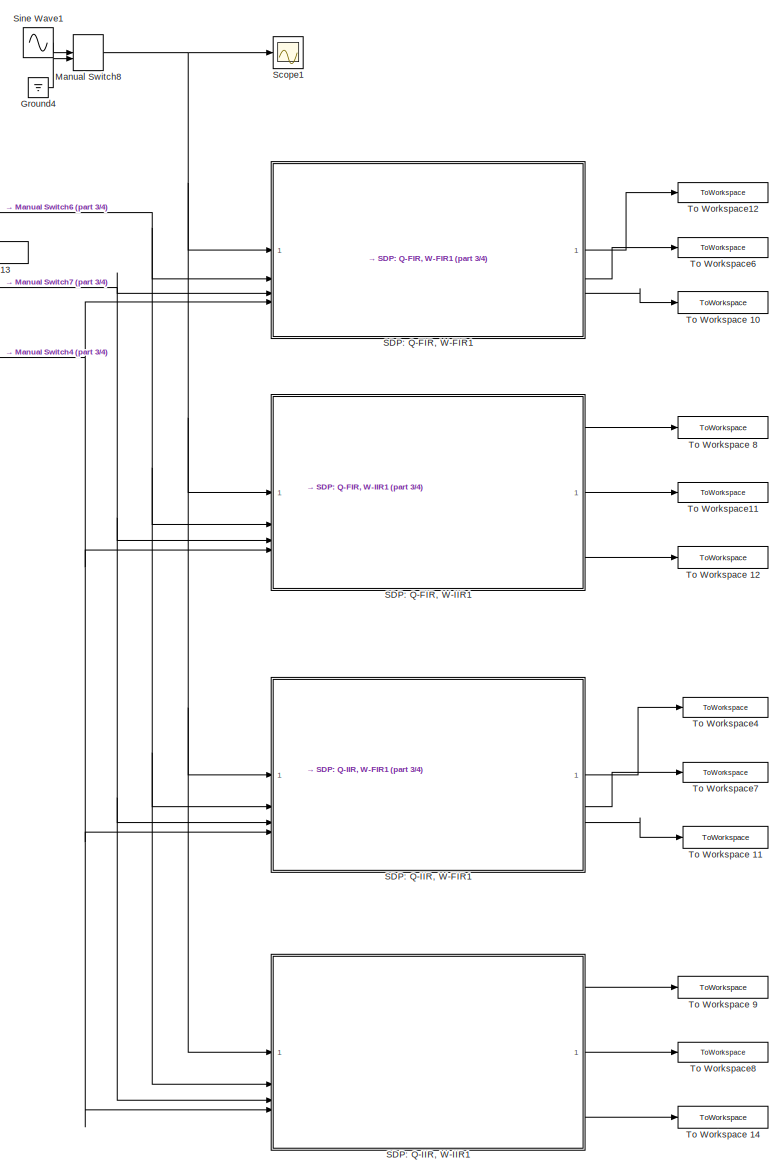
[diagram: root canvas - part 1/4, right side, full height]
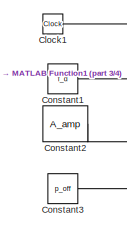
[diagram: root canvas - part 2/4, top center region]
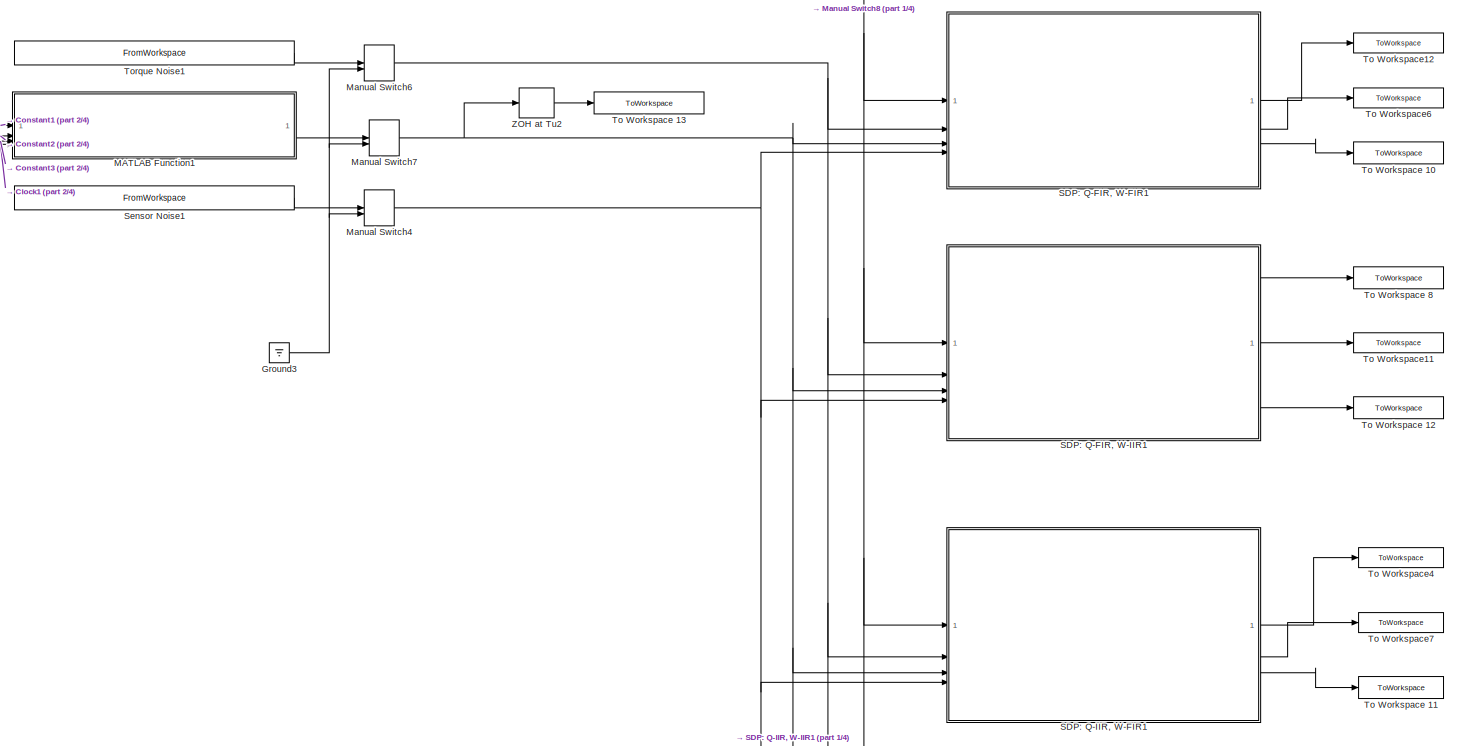
[diagram: root canvas - part 3/4, middle right region]
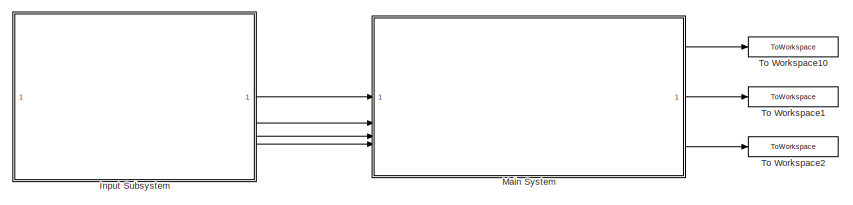
[diagram: root canvas - part 4/4, top left region]
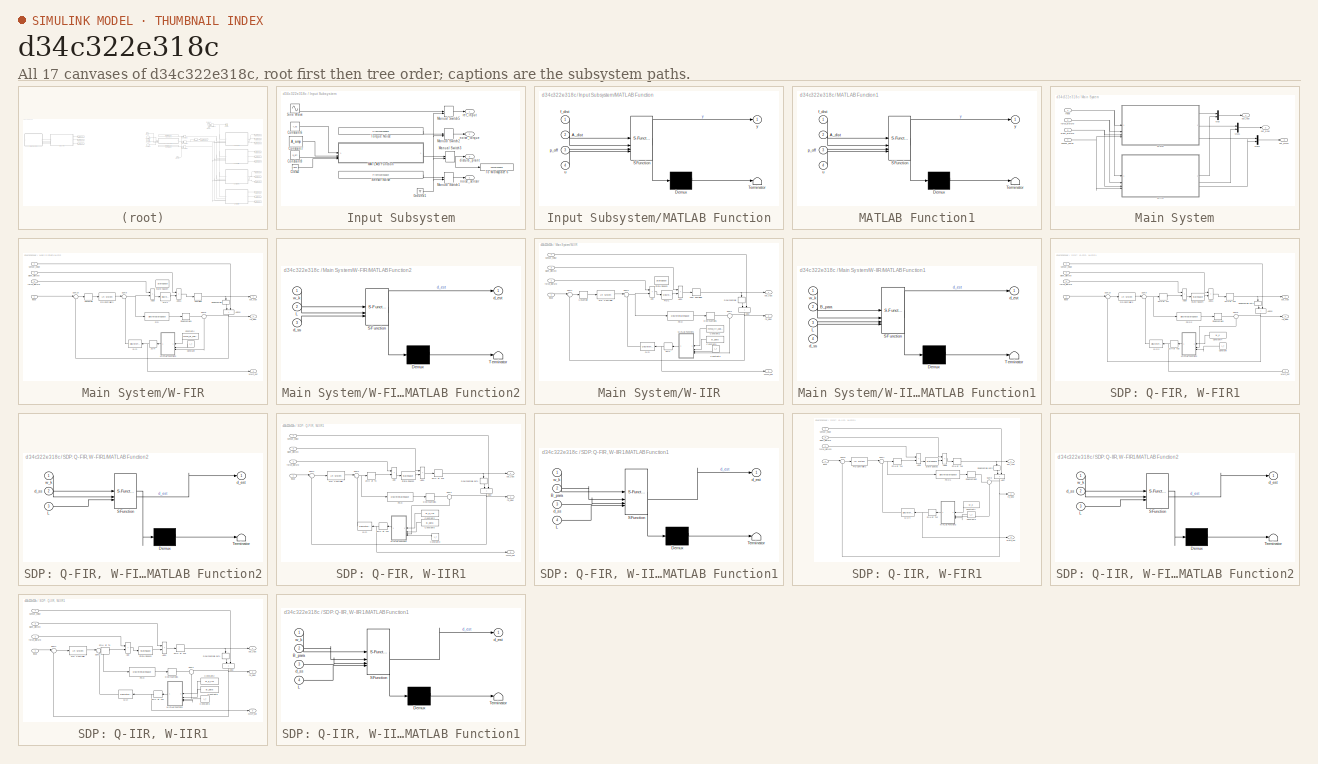
[diagram: thumbnail index - all 17 canvases of the model, root first then tree order]
MODEL slx_d34c322e318c
KIND model
CONFIG AbsTol = auto
CONFIG EnableMultiTasking = off
CONFIG FixedStep = auto
CONFIG MaxStep = auto
CONFIG MinStep = auto
CONFIG RelTol = 1e-3
CONFIG SampleTimeConstraint = Unconstrained
CONFIG SolverName = VariableStepAuto
CONFIG StartTime = 0.0
CONFIG StopTime = Tsim
BLOCK [Clock] Clock1
  Commented = on
BLOCK [Constant] Constant1
  Commented = on
  Value = f_d
BLOCK [Constant] Constant2
  Commented = on
  Value = A_amp
BLOCK [Constant] Constant3
  Commented = on
  Value = p_off
BLOCK [Ground] Ground3
  Commented = on
BLOCK [Ground] Ground4
  Commented = on
BLOCK [SubSystem] Input Subsystem
BLOCK [Clock] Input Subsystem/Clock2
BLOCK [Constant] Input Subsystem/Constant6
  Value = f_hz
BLOCK [Constant] Input Subsystem/Constant7
  Value = A_amp
BLOCK [Constant] Input Subsystem/Constant8
  Value = p_off
BLOCK [Ground] Input Subsystem/Ground1
BLOCK [SubSystem] Input Subsystem/MATLAB Function
  ErrorFcn = Stateflow.Translate.translate
  LibrarySourceBlock = simulink/User-Defined\nFunctions/MATLAB Function
  PermitHierarchicalResolution = ExplicitOnly
  SFBlockType = MATLAB Function
  TreatAsAtomicUnit = on
BLOCK [Demux] Input Subsystem/MATLAB Function/ Demux 
  Outputs = 1
BLOCK [S-Function] Input Subsystem/MATLAB Function/ SFunction 
  EnableBusSupport = on
  FunctionName = sf_sfun
  PortCounts = [4 2]
  SFcnIsStateOwnerBlock = off
  SFunctionDeploymentMode = off
  Tag = Stateflow S-Function 2
BLOCK [Terminator] Input Subsystem/MATLAB Function/ Terminator 
BLOCK [Inport] Input Subsystem/MATLAB Function/A_dist
  Port = 2
BLOCK [Inport] Input Subsystem/MATLAB Function/f_dist
BLOCK [Inport] Input Subsystem/MATLAB Function/p_off
  Port = 3
BLOCK [Inport] Input Subsystem/MATLAB Function/u
  Port = 4
BLOCK [Outport] Input Subsystem/MATLAB Function/y
BLOCK [ManualSwitch] Input Subsystem/Manual Switch1
BLOCK [ManualSwitch] Input Subsystem/Manual Switch2
BLOCK [ManualSwitch] Input Subsystem/Manual Switch3
BLOCK [ManualSwitch] Input Subsystem/Manual Switch5
  CurrentSetting = 0
BLOCK [FromWorkspace] Input Subsystem/Sensor Noise
  Interpolate = off
  OutputAfterFinalValue = Setting to zero
  SampleTime = SensorNoise.Ts
  VariableName = [SensorNoise.Time,SensorNoise.Data]
  ZeroCross = off
BLOCK [Sin] Input Subsystem/Sine Wave
  SampleTime = T_fs
BLOCK [ToWorkspace] Input Subsystem/To Workspace 6
  MaxDataPoints = Inf
  SampleTime = T_fs
  SaveFormat = Structure With Time
  VariableName = dist
BLOCK [FromWorkspace] Input Subsystem/Torque Noise
  Interpolate = off
  OutputAfterFinalValue = Setting to zero
  SampleTime = ForceDist.Ts
  VariableName = [ForceDist.Time,ForceDist.Data]
  ZeroCross = off
BLOCK [Outport] Input Subsystem/disturb_plant
  Port = 3
BLOCK [Outport] Input Subsystem/noise_sensor
  Port = 4
BLOCK [Outport] Input Subsystem/noise_torque
  Port = 2
BLOCK [Outport] Input Subsystem/ref_input
BLOCK [SubSystem] MATLAB Function1
  Commented = on
  ErrorFcn = Stateflow.Translate.translate
  LibrarySourceBlock = simulink/User-Defined\nFunctions/MATLAB Function
  PermitHierarchicalResolution = ExplicitOnly
  SFBlockType = MATLAB Function
  TreatAsAtomicUnit = on
BLOCK [Demux] MATLAB Function1/ Demux 
  Outputs = 1
BLOCK [S-Function] MATLAB Function1/ SFunction 
  EnableBusSupport = on
  FunctionName = sf_sfun
  PortCounts = [4 2]
  SFcnIsStateOwnerBlock = off
  SFunctionDeploymentMode = off
  Tag = Stateflow S-Function 6
BLOCK [Terminator] MATLAB Function1/ Terminator 
BLOCK [Inport] MATLAB Function1/A_dist
  Port = 2
BLOCK [Inport] MATLAB Function1/f_dist
BLOCK [Inport] MATLAB Function1/p_off
  Port = 3
BLOCK [Inport] MATLAB Function1/u
  Port = 4
BLOCK [Outport] MATLAB Function1/y
BLOCK [SubSystem] Main System
BLOCK [Mux] Main System/Mux
  DisplayOption = bar
  Inputs = 2
BLOCK [Mux] Main System/Mux1
  DisplayOption = bar
  Inputs = 2
BLOCK [Mux] Main System/Mux2
  DisplayOption = bar
  Inputs = 2
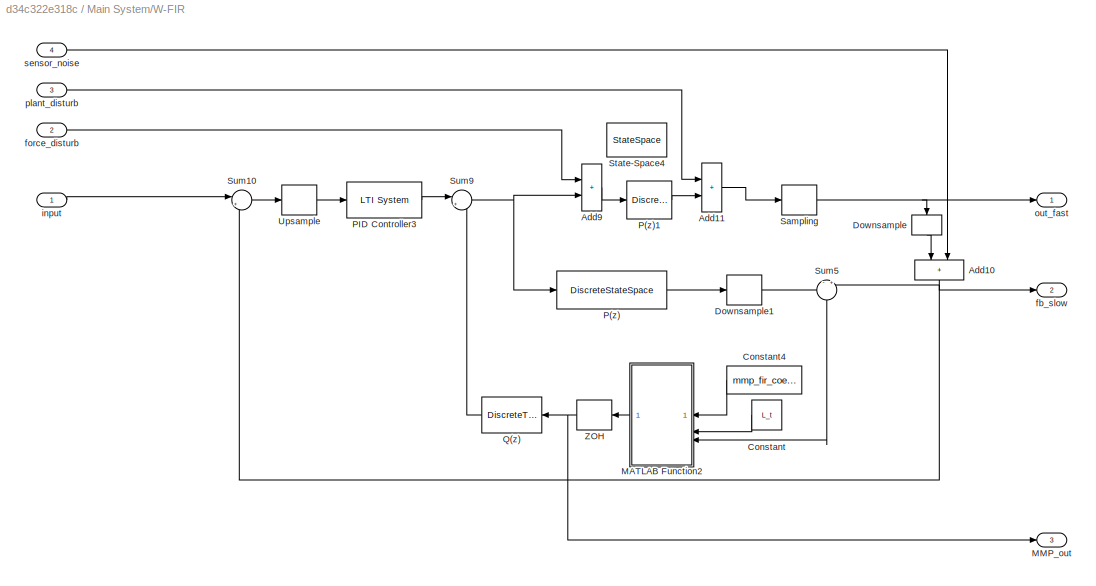
BLOCK [SubSystem] Main System/W-FIR
BLOCK [Sum] Main System/W-FIR/Add10
  IconShape = rectangular
  NameLocation = left
BLOCK [Sum] Main System/W-FIR/Add11
  IconShape = rectangular
BLOCK [Sum] Main System/W-FIR/Add9
  IconShape = rectangular
BLOCK [Constant] Main System/W-FIR/Constant
  NameLocation = top
  Value = L_t
BLOCK [Constant] Main System/W-FIR/Constant4
  NameLocation = top
  Value = mmp_fir_coeff
BLOCK [ZeroOrderHold] Main System/W-FIR/Downsample
  NameLocation = left
  SampleTime = T_ss
BLOCK [ZeroOrderHold] Main System/W-FIR/Downsample1
  SampleTime = T_ss
BLOCK [SubSystem] Main System/W-FIR/MATLAB Function2
  ErrorFcn = Stateflow.Translate.translate
  NameLocation = top
  PermitHierarchicalResolution = ExplicitOnly
  SFBlockType = MATLAB Function
  SystemSampleTime = T_cs
  TreatAsAtomicUnit = on
BLOCK [Demux] Main System/W-FIR/MATLAB Function2/ Demux 
  Outputs = 1
BLOCK [S-Function] Main System/W-FIR/MATLAB Function2/ SFunction 
  EnableBusSupport = on
  FunctionName = sf_sfun
  PortCounts = [3 2]
  SFcnIsStateOwnerBlock = off
  SFunctionDeploymentMode = off
  Tag = Stateflow S-Function 3
BLOCK [Terminator] Main System/W-FIR/MATLAB Function2/ Terminator 
BLOCK [Inport] Main System/W-FIR/MATLAB Function2/L
  Port = 2
BLOCK [Outport] Main System/W-FIR/MATLAB Function2/d_est
BLOCK [Inport] Main System/W-FIR/MATLAB Function2/d_ss
  Port = 3
BLOCK [Inport] Main System/W-FIR/MATLAB Function2/w_k
BLOCK [Outport] Main System/W-FIR/MMP_out
  NameLocation = top
  Port = 3
BLOCK [DiscreteStateSpace] Main System/W-FIR/P(z)
  A = Pz_sys.A
  B = Pz_sys.B
  C = Pz_sys.C
  D = Pz_sys.D
  SampleTime = T_fs
BLOCK [DiscreteStateSpace] Main System/W-FIR/P(z)1
  A = Pz_sys.A
  B = Pz_sys.B
  C = Pz_sys.C
  D = Pz_sys.D
  SampleTime = T_fs
BLOCK [Reference] Main System/W-FIR/PID Controller3  REF=cstblocks/LTI System
  SourceBlock = cstblocks/LTI System
  SourceType = LTI Block
BLOCK [DiscreteTransferFcn] Main System/W-FIR/Q(z)
  Denominator = cell2mat(Qcvx_sim.den)
  InputPortMap = u0
  NameLocation = top
  Numerator = cell2mat(Qcvx_sim.num)
  SampleTime = T_fs
BLOCK [ZeroOrderHold] Main System/W-FIR/Sampling
  SampleTime = T_fs
BLOCK [StateSpace] Main System/W-FIR/State-Space4
  A = Ps_sys.A
  B = Ps_sys.B
  C = Ps_sys.C
  Commented = on
  D = Ps_sys.D
  InitialCondition = 0
BLOCK [Sum] Main System/W-FIR/Sum10
  Inputs = |+-
BLOCK [Sum] Main System/W-FIR/Sum5
  Inputs = -|+
  NameLocation = left
BLOCK [Sum] Main System/W-FIR/Sum9
  Inputs = |+-
BLOCK [ZeroOrderHold] Main System/W-FIR/Upsample
  SampleTime = T_fs
BLOCK [ZeroOrderHold] Main System/W-FIR/ZOH
  NameLocation = top
  SampleTime = T_fs
BLOCK [Outport] Main System/W-FIR/fb_slow
  Port = 2
BLOCK [Inport] Main System/W-FIR/force_disturb
  Port = 2
BLOCK [Inport] Main System/W-FIR/input
BLOCK [Outport] Main System/W-FIR/out_fast
BLOCK [Inport] Main System/W-FIR/plant_disturb
  Port = 3
BLOCK [Inport] Main System/W-FIR/sensor_noise
  Port = 4
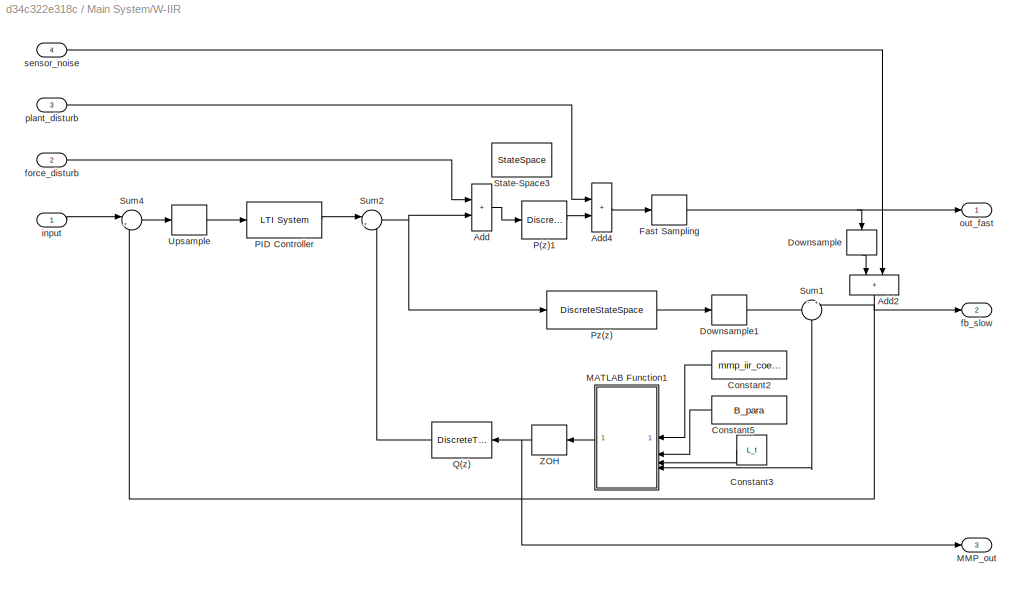
BLOCK [SubSystem] Main System/W-IIR
BLOCK [Sum] Main System/W-IIR/Add
  IconShape = rectangular
BLOCK [Sum] Main System/W-IIR/Add2
  IconShape = rectangular
  NameLocation = left
BLOCK [Sum] Main System/W-IIR/Add4
  IconShape = rectangular
BLOCK [Constant] Main System/W-IIR/Constant2
  NameLocation = top
  Value = mmp_iir_coeff
BLOCK [Constant] Main System/W-IIR/Constant3
  NameLocation = top
  Value = L_t
BLOCK [Constant] Main System/W-IIR/Constant5
  NameLocation = top
  Value = B_para
BLOCK [ZeroOrderHold] Main System/W-IIR/Downsample
  NameLocation = left
  SampleTime = T_ss
BLOCK [ZeroOrderHold] Main System/W-IIR/Downsample1
  SampleTime = T_ss
BLOCK [ZeroOrderHold] Main System/W-IIR/Fast Sampling
  SampleTime = T_fs
BLOCK [SubSystem] Main System/W-IIR/MATLAB Function1
  ErrorFcn = Stateflow.Translate.translate
  NameLocation = top
  PermitHierarchicalResolution = ExplicitOnly
  SFBlockType = MATLAB Function
  SystemSampleTime = T_cs
  TreatAsAtomicUnit = on
BLOCK [Demux] Main System/W-IIR/MATLAB Function1/ Demux 
  Outputs = 1
BLOCK [S-Function] Main System/W-IIR/MATLAB Function1/ SFunction 
  EnableBusSupport = on
  FunctionName = sf_sfun
  PortCounts = [4 2]
  SFcnIsStateOwnerBlock = off
  SFunctionDeploymentMode = off
  Tag = Stateflow S-Function 4
BLOCK [Terminator] Main System/W-IIR/MATLAB Function1/ Terminator 
BLOCK [Inport] Main System/W-IIR/MATLAB Function1/B_para
  Port = 2
BLOCK [Inport] Main System/W-IIR/MATLAB Function1/L
  Port = 3
BLOCK [Outport] Main System/W-IIR/MATLAB Function1/d_est
BLOCK [Inport] Main System/W-IIR/MATLAB Function1/d_ss
  Port = 4
BLOCK [Inport] Main System/W-IIR/MATLAB Function1/w_k
BLOCK [Outport] Main System/W-IIR/MMP_out
  Port = 3
BLOCK [DiscreteStateSpace] Main System/W-IIR/P(z)1
  A = Pz_sys.A
  B = Pz_sys.B
  C = Pz_sys.C
  D = Pz_sys.D
  SampleTime = T_fs
BLOCK [Reference] Main System/W-IIR/PID Controller  REF=cstblocks/LTI System
  SourceBlock = cstblocks/LTI System
  SourceType = LTI Block
BLOCK [DiscreteStateSpace] Main System/W-IIR/Pz(z)
  A = Pz_sys.A
  B = Pz_sys.B
  C = Pz_sys.C
  D = Pz_sys.D
  SampleTime = T_fs
BLOCK [DiscreteTransferFcn] Main System/W-IIR/Q(z)
  Denominator = cell2mat(Qcvx_sim.den)
  InputPortMap = u0
  NameLocation = top
  Numerator = cell2mat(Qcvx_sim.num)
  SampleTime = T_fs
BLOCK [StateSpace] Main System/W-IIR/State-Space3
  A = Ps_sys.A
  B = Ps_sys.B
  C = Ps_sys.C
  Commented = on
  D = Ps_sys.D
  InitialCondition = 0
BLOCK [Sum] Main System/W-IIR/Sum1
  Inputs = -|+
  NameLocation = left
BLOCK [Sum] Main System/W-IIR/Sum2
  Inputs = |+-
BLOCK [Sum] Main System/W-IIR/Sum4
  Inputs = |+-
BLOCK [ZeroOrderHold] Main System/W-IIR/Upsample
  SampleTime = T_fs
BLOCK [ZeroOrderHold] Main System/W-IIR/ZOH
  NameLocation = top
  SampleTime = T_fs
BLOCK [Outport] Main System/W-IIR/fb_slow
  Port = 2
BLOCK [Inport] Main System/W-IIR/force_disturb
  Port = 2
BLOCK [Inport] Main System/W-IIR/input
BLOCK [Outport] Main System/W-IIR/out_fast
BLOCK [Inport] Main System/W-IIR/plant_disturb
  Port = 3
BLOCK [Inport] Main System/W-IIR/sensor_noise
  Port = 4
BLOCK [Inport] Main System/force_disturb
  Port = 2
BLOCK [Inport] Main System/input
BLOCK [Outport] Main System/out_fast
BLOCK [Outport] Main System/out_mmp
  Port = 3
BLOCK [Outport] Main System/out_slow
  Port = 2
BLOCK [Inport] Main System/plant_disturb
  Port = 3
BLOCK [Inport] Main System/sensor_noise
  Port = 4
BLOCK [ManualSwitch] Manual Switch4
  Commented = on
BLOCK [ManualSwitch] Manual Switch6
  Commented = on
BLOCK [ManualSwitch] Manual Switch7
  Commented = on
BLOCK [ManualSwitch] Manual Switch8
  Commented = on
  CurrentSetting = 0
BLOCK [SubSystem] SDP: Q-FIR, W-FIR1
  Commented = on
BLOCK [Sum] SDP: Q-FIR, W-FIR1/Add10
  IconShape = rectangular
  NameLocation = left
BLOCK [Sum] SDP: Q-FIR, W-FIR1/Add11
  IconShape = rectangular
BLOCK [Sum] SDP: Q-FIR, W-FIR1/Add9
  IconShape = rectangular
BLOCK [Constant] SDP: Q-FIR, W-FIR1/Constant
  NameLocation = top
  Value = L_t
BLOCK [Constant] SDP: Q-FIR, W-FIR1/Constant4
  NameLocation = top
  Value = w_k
BLOCK [ZeroOrderHold] SDP: Q-FIR, W-FIR1/Downsample out1
  NameLocation = left
  SampleTime = Ts
BLOCK [ZeroOrderHold] SDP: Q-FIR, W-FIR1/Downsample1
  SampleTime = Ts
BLOCK [SubSystem] SDP: Q-FIR, W-FIR1/MATLAB Function2
  ErrorFcn = Stateflow.Translate.translate
  NameLocation = top
  PermitHierarchicalResolution = ExplicitOnly
  SFBlockType = MATLAB Function
  SystemSampleTime = T_cs
  TreatAsAtomicUnit = on
BLOCK [Demux] SDP: Q-FIR, W-FIR1/MATLAB Function2/ Demux 
  Outputs = 1
BLOCK [S-Function] SDP: Q-FIR, W-FIR1/MATLAB Function2/ SFunction 
  EnableBusSupport = on
  FunctionName = sf_sfun
  PortCounts = [3 2]
  SFcnIsStateOwnerBlock = off
  SFunctionDeploymentMode = off
  Tag = Stateflow S-Function 7
BLOCK [Terminator] SDP: Q-FIR, W-FIR1/MATLAB Function2/ Terminator 
BLOCK [Inport] SDP: Q-FIR, W-FIR1/MATLAB Function2/L
  Port = 3
BLOCK [Outport] SDP: Q-FIR, W-FIR1/MATLAB Function2/d_est
BLOCK [Inport] SDP: Q-FIR, W-FIR1/MATLAB Function2/d_ss
  Port = 2
BLOCK [Inport] SDP: Q-FIR, W-FIR1/MATLAB Function2/w_k
BLOCK [Outport] SDP: Q-FIR, W-FIR1/MMP_out
  NameLocation = top
  Port = 3
BLOCK [Reference] SDP: Q-FIR, W-FIR1/PID Controller3  REF=cstblocks/LTI System
  SourceBlock = cstblocks/LTI System
  SourceType = LTI Block
BLOCK [DiscreteStateSpace] SDP: Q-FIR, W-FIR1/Pz(z)2
  A = Pz_sys.A
  B = Pz_sys.B
  C = Pz_sys.C
  D = Pz_sys.D
  SampleTime = Tu
BLOCK [DiscreteTransferFcn] SDP: Q-FIR, W-FIR1/Q(z)2
  Denominator = cell2mat(Qcvx_FIR.den)
  InputPortMap = u0
  NameLocation = top
  Numerator = cell2mat(Qcvx_FIR.num)
  SampleTime = Tu
BLOCK [StateSpace] SDP: Q-FIR, W-FIR1/State-Space4
  A = Ps_sys.A
  B = Ps_sys.B
  C = Ps_sys.C
  D = Ps_sys.D
  InitialCondition = 0
BLOCK [Sum] SDP: Q-FIR, W-FIR1/Sum10
  Inputs = |+-
BLOCK [Sum] SDP: Q-FIR, W-FIR1/Sum5
  Inputs = -|+
  NameLocation = left
BLOCK [Sum] SDP: Q-FIR, W-FIR1/Sum9
  Inputs = |+-
BLOCK [ZeroOrderHold] SDP: Q-FIR, W-FIR1/ZOH at Tu7
  SampleTime = Tu
BLOCK [ZeroOrderHold] SDP: Q-FIR, W-FIR1/ZOH at Tu8
  NameLocation = top
  SampleTime = Tu
BLOCK [ZeroOrderHold] SDP: Q-FIR, W-FIR1/ZOH at Tu9
  SampleTime = Tu
BLOCK [Outport] SDP: Q-FIR, W-FIR1/fb_slow
  Port = 2
BLOCK [Inport] SDP: Q-FIR, W-FIR1/force_disturb
  Port = 2
BLOCK [Inport] SDP: Q-FIR, W-FIR1/input
BLOCK [Outport] SDP: Q-FIR, W-FIR1/out_fast
BLOCK [Inport] SDP: Q-FIR, W-FIR1/plant_disturb
  Port = 3
BLOCK [Inport] SDP: Q-FIR, W-FIR1/sensor_noise
  Port = 4
BLOCK [SubSystem] SDP: Q-FIR, W-IIR1
  Commented = on
BLOCK [Sum] SDP: Q-FIR, W-IIR1/Add
  IconShape = rectangular
BLOCK [Sum] SDP: Q-FIR, W-IIR1/Add2
  IconShape = rectangular
  NameLocation = left
BLOCK [Sum] SDP: Q-FIR, W-IIR1/Add4
  IconShape = rectangular
BLOCK [Constant] SDP: Q-FIR, W-IIR1/Constant2
  NameLocation = top
  Value = w_k_IIR
BLOCK [Constant] SDP: Q-FIR, W-IIR1/Constant3
  NameLocation = top
  Value = L_t
BLOCK [Constant] SDP: Q-FIR, W-IIR1/Constant5
  NameLocation = top
  Value = B_para
BLOCK [ZeroOrderHold] SDP: Q-FIR, W-IIR1/Downsample out1
  NameLocation = left
  SampleTime = Ts
BLOCK [ZeroOrderHold] SDP: Q-FIR, W-IIR1/Downsample1
  SampleTime = Ts
BLOCK [SubSystem] SDP: Q-FIR, W-IIR1/MATLAB Function1
  ErrorFcn = Stateflow.Translate.translate
  NameLocation = top
  PermitHierarchicalResolution = ExplicitOnly
  SFBlockType = MATLAB Function
  SystemSampleTime = T_cs
  TreatAsAtomicUnit = on
BLOCK [Demux] SDP: Q-FIR, W-IIR1/MATLAB Function1/ Demux 
  Outputs = 1
BLOCK [S-Function] SDP: Q-FIR, W-IIR1/MATLAB Function1/ SFunction 
  EnableBusSupport = on
  FunctionName = sf_sfun
  PortCounts = [4 2]
  SFcnIsStateOwnerBlock = off
  SFunctionDeploymentMode = off
  Tag = Stateflow S-Function 8
BLOCK [Terminator] SDP: Q-FIR, W-IIR1/MATLAB Function1/ Terminator 
BLOCK [Inport] SDP: Q-FIR, W-IIR1/MATLAB Function1/B_para
  Port = 2
BLOCK [Inport] SDP: Q-FIR, W-IIR1/MATLAB Function1/L
  Port = 4
BLOCK [Outport] SDP: Q-FIR, W-IIR1/MATLAB Function1/d_est
BLOCK [Inport] SDP: Q-FIR, W-IIR1/MATLAB Function1/d_ss
  Port = 3
BLOCK [Inport] SDP: Q-FIR, W-IIR1/MATLAB Function1/w_k
BLOCK [Outport] SDP: Q-FIR, W-IIR1/MMP_out
  Port = 3
BLOCK [Reference] SDP: Q-FIR, W-IIR1/PID Controller  REF=cstblocks/LTI System
  SourceBlock = cstblocks/LTI System
  SourceType = LTI Block
BLOCK [DiscreteStateSpace] SDP: Q-FIR, W-IIR1/Pz(z)
  A = Pz_sys.A
  B = Pz_sys.B
  C = Pz_sys.C
  D = Pz_sys.D
  SampleTime = Tu
BLOCK [DiscreteTransferFcn] SDP: Q-FIR, W-IIR1/Q(z)
  Denominator = cell2mat(Qcvx_FIR.den)
  InputPortMap = u0
  NameLocation = top
  Numerator = cell2mat(Qcvx_FIR.num)
  SampleTime = Tu
BLOCK [StateSpace] SDP: Q-FIR, W-IIR1/State-Space3
  A = Ps_sys.A
  B = Ps_sys.B
  C = Ps_sys.C
  D = Ps_sys.D
  InitialCondition = 0
BLOCK [Sum] SDP: Q-FIR, W-IIR1/Sum1
  Inputs = -|+
  NameLocation = left
BLOCK [Sum] SDP: Q-FIR, W-IIR1/Sum2
  Inputs = |+-
BLOCK [Sum] SDP: Q-FIR, W-IIR1/Sum4
  Inputs = |+-
BLOCK [ZeroOrderHold] SDP: Q-FIR, W-IIR1/ZOH at Tu
  SampleTime = Tu
BLOCK [ZeroOrderHold] SDP: Q-FIR, W-IIR1/ZOH at Tu2
  NameLocation = top
  SampleTime = Tu
BLOCK [ZeroOrderHold] SDP: Q-FIR, W-IIR1/ZOH at Tu3
  SampleTime = Tu
BLOCK [Outport] SDP: Q-FIR, W-IIR1/fb_slow
  Port = 2
BLOCK [Inport] SDP: Q-FIR, W-IIR1/force_disturb
  Port = 2
BLOCK [Inport] SDP: Q-FIR, W-IIR1/input
BLOCK [Outport] SDP: Q-FIR, W-IIR1/out_fast
BLOCK [Inport] SDP: Q-FIR, W-IIR1/plant_disturb
  Port = 3
BLOCK [Inport] SDP: Q-FIR, W-IIR1/sensor_noise
  Port = 4
BLOCK [SubSystem] SDP: Q-IIR, W-FIR1
  Commented = on
BLOCK [Sum] SDP: Q-IIR, W-FIR1/Add6
  IconShape = rectangular
BLOCK [Sum] SDP: Q-IIR, W-FIR1/Add7
  IconShape = rectangular
  NameLocation = left
BLOCK [Sum] SDP: Q-IIR, W-FIR1/Add8
  IconShape = rectangular
BLOCK [Constant] SDP: Q-IIR, W-FIR1/Constant3
  NameLocation = top
  Value = L_t
BLOCK [Constant] SDP: Q-IIR, W-FIR1/Constant4
  NameLocation = top
  Value = w_k
BLOCK [ZeroOrderHold] SDP: Q-IIR, W-FIR1/Downsample out2
  NameLocation = left
  SampleTime = Ts
BLOCK [ZeroOrderHold] SDP: Q-IIR, W-FIR1/Downsample2
  SampleTime = Ts
BLOCK [SubSystem] SDP: Q-IIR, W-FIR1/MATLAB Function2
  ErrorFcn = Stateflow.Translate.translate
  NameLocation = top
  PermitHierarchicalResolution = ExplicitOnly
  SFBlockType = MATLAB Function
  SystemSampleTime = T_cs
  TreatAsAtomicUnit = on
BLOCK [Demux] SDP: Q-IIR, W-FIR1/MATLAB Function2/ Demux 
  Outputs = 1
BLOCK [S-Function] SDP: Q-IIR, W-FIR1/MATLAB Function2/ SFunction 
  EnableBusSupport = on
  FunctionName = sf_sfun
  PortCounts = [3 2]
  SFcnIsStateOwnerBlock = off
  SFunctionDeploymentMode = off
  Tag = Stateflow S-Function 9
BLOCK [Terminator] SDP: Q-IIR, W-FIR1/MATLAB Function2/ Terminator 
BLOCK [Inport] SDP: Q-IIR, W-FIR1/MATLAB Function2/L
  Port = 3
BLOCK [Outport] SDP: Q-IIR, W-FIR1/MATLAB Function2/d_est
BLOCK [Inport] SDP: Q-IIR, W-FIR1/MATLAB Function2/d_ss
  Port = 2
BLOCK [Inport] SDP: Q-IIR, W-FIR1/MATLAB Function2/w_k
BLOCK [Outport] SDP: Q-IIR, W-FIR1/MMP_out
  Port = 3
BLOCK [Reference] SDP: Q-IIR, W-FIR1/PID Controller2  REF=cstblocks/LTI System
  SourceBlock = cstblocks/LTI System
  SourceType = LTI Block
BLOCK [DiscreteStateSpace] SDP: Q-IIR, W-FIR1/Pz(z)1
  A = Pz_sys.A
  B = Pz_sys.B
  C = Pz_sys.C
  D = Pz_sys.D
  SampleTime = Tu
BLOCK [DiscreteTransferFcn] SDP: Q-IIR, W-FIR1/Q(z)4
  Denominator = cell2mat(Qcvx_IIR.den)
  InputPortMap = u0
  NameLocation = top
  Numerator = cell2mat(Qcvx_IIR.num)
BLOCK [StateSpace] SDP: Q-IIR, W-FIR1/State-Space2
  A = Ps_sys.A
  B = Ps_sys.B
  C = Ps_sys.C
  D = Ps_sys.D
  InitialCondition = 0
BLOCK [Sum] SDP: Q-IIR, W-FIR1/Sum3
  Inputs = -|+
  NameLocation = left
BLOCK [Sum] SDP: Q-IIR, W-FIR1/Sum7
  Inputs = |+-
BLOCK [Sum] SDP: Q-IIR, W-FIR1/Sum8
  Inputs = |+-
BLOCK [ZeroOrderHold] SDP: Q-IIR, W-FIR1/ZOH at Tu2
  NameLocation = top
  SampleTime = Tu
BLOCK [ZeroOrderHold] SDP: Q-IIR, W-FIR1/ZOH at Tu4
  SampleTime = Tu
BLOCK [ZeroOrderHold] SDP: Q-IIR, W-FIR1/ZOH at Tu6
  SampleTime = Tu
BLOCK [Outport] SDP: Q-IIR, W-FIR1/fb_slow
  Port = 2
BLOCK [Inport] SDP: Q-IIR, W-FIR1/force_disturb
  Port = 2
BLOCK [Inport] SDP: Q-IIR, W-FIR1/input
BLOCK [Outport] SDP: Q-IIR, W-FIR1/out_fast
BLOCK [Inport] SDP: Q-IIR, W-FIR1/plant_disturb
  Port = 3
BLOCK [Inport] SDP: Q-IIR, W-FIR1/sensor_noise
  Port = 4
BLOCK [SubSystem] SDP: Q-IIR, W-IIR1
  Commented = on
BLOCK [Sum] SDP: Q-IIR, W-IIR1/Add
  IconShape = rectangular
BLOCK [Sum] SDP: Q-IIR, W-IIR1/Add2
  IconShape = rectangular
  NameLocation = left
BLOCK [Sum] SDP: Q-IIR, W-IIR1/Add4
  IconShape = rectangular
BLOCK [Constant] SDP: Q-IIR, W-IIR1/Constant2
  NameLocation = top
  Value = w_k_IIR
BLOCK [Constant] SDP: Q-IIR, W-IIR1/Constant3
  NameLocation = top
  Value = L_t
BLOCK [Constant] SDP: Q-IIR, W-IIR1/Constant5
  NameLocation = top
  Value = B_para
BLOCK [ZeroOrderHold] SDP: Q-IIR, W-IIR1/Downsample out1
  NameLocation = left
  SampleTime = Ts
BLOCK [ZeroOrderHold] SDP: Q-IIR, W-IIR1/Downsample1
  SampleTime = Ts
BLOCK [SubSystem] SDP: Q-IIR, W-IIR1/MATLAB Function1
  ErrorFcn = Stateflow.Translate.translate
  NameLocation = top
  PermitHierarchicalResolution = ExplicitOnly
  SFBlockType = MATLAB Function
  SystemSampleTime = T_cs
  TreatAsAtomicUnit = on
BLOCK [Demux] SDP: Q-IIR, W-IIR1/MATLAB Function1/ Demux 
  Outputs = 1
BLOCK [S-Function] SDP: Q-IIR, W-IIR1/MATLAB Function1/ SFunction 
  EnableBusSupport = on
  FunctionName = sf_sfun
  PortCounts = [4 2]
  SFcnIsStateOwnerBlock = off
  SFunctionDeploymentMode = off
  Tag = Stateflow S-Function 10
BLOCK [Terminator] SDP: Q-IIR, W-IIR1/MATLAB Function1/ Terminator 
BLOCK [Inport] SDP: Q-IIR, W-IIR1/MATLAB Function1/B_para
  Port = 2
BLOCK [Inport] SDP: Q-IIR, W-IIR1/MATLAB Function1/L
  Port = 4
BLOCK [Outport] SDP: Q-IIR, W-IIR1/MATLAB Function1/d_est
BLOCK [Inport] SDP: Q-IIR, W-IIR1/MATLAB Function1/d_ss
  Port = 3
BLOCK [Inport] SDP: Q-IIR, W-IIR1/MATLAB Function1/w_k
BLOCK [Outport] SDP: Q-IIR, W-IIR1/MMP_out
  Port = 3
BLOCK [Reference] SDP: Q-IIR, W-IIR1/PID Controller  REF=cstblocks/LTI System
  SourceBlock = cstblocks/LTI System
  SourceType = LTI Block
BLOCK [DiscreteStateSpace] SDP: Q-IIR, W-IIR1/Pz(z)
  A = Pz_sys.A
  B = Pz_sys.B
  C = Pz_sys.C
  D = Pz_sys.D
  SampleTime = Tu
BLOCK [DiscreteTransferFcn] SDP: Q-IIR, W-IIR1/Q(z)
  Denominator = cell2mat(Qcvx_IIR.den)
  InputPortMap = u0
  NameLocation = top
  Numerator = cell2mat(Qcvx_IIR.num)
  SampleTime = Tu
BLOCK [StateSpace] SDP: Q-IIR, W-IIR1/State-Space3
  A = Ps_sys.A
  B = Ps_sys.B
  C = Ps_sys.C
  D = Ps_sys.D
  InitialCondition = 0
BLOCK [Sum] SDP: Q-IIR, W-IIR1/Sum1
  Inputs = -|+
  NameLocation = left
BLOCK [Sum] SDP: Q-IIR, W-IIR1/Sum2
  Inputs = |+-
BLOCK [Sum] SDP: Q-IIR, W-IIR1/Sum4
  Inputs = |+-
BLOCK [ZeroOrderHold] SDP: Q-IIR, W-IIR1/ZOH at Tu
  SampleTime = Tu
BLOCK [ZeroOrderHold] SDP: Q-IIR, W-IIR1/ZOH at Tu2
  NameLocation = top
  SampleTime = Tu
BLOCK [ZeroOrderHold] SDP: Q-IIR, W-IIR1/ZOH at Tu3
  SampleTime = Tu
BLOCK [Outport] SDP: Q-IIR, W-IIR1/fb_slow
  Port = 2
BLOCK [Inport] SDP: Q-IIR, W-IIR1/force_disturb
  Port = 2
BLOCK [Inport] SDP: Q-IIR, W-IIR1/input
BLOCK [Outport] SDP: Q-IIR, W-IIR1/out_fast
BLOCK [Inport] SDP: Q-IIR, W-IIR1/plant_disturb
  Port = 3
BLOCK [Inport] SDP: Q-IIR, W-IIR1/sensor_noise
  Port = 4
BLOCK [Scope] Scope1
  Commented = on
  Floating = off
  NumInputPorts = 1
  ScopeSpecificationString = Simulink.scopes.TimeScopeBlockCfg('CurrentConfiguration', extmgr.ConfigurationSet(extmgr.Configuration('Core','General UI',true),extmgr.Configuration('Core','Source UI',true),extmgr.Configuration('Sources','WiredSimulink',true,'DataLoggingVariableName','ScopeData1'),extmgr.Configuration('Visuals','Time Domain',true,'SerializedDisplays',{struct('MinYLimReal','-0.125','MaxYLimReal','1.125','YLabelRe...<+1416ch>
BLOCK [FromWorkspace] Sensor Noise1
  Commented = on
  Interpolate = off
  OutputAfterFinalValue = Setting to zero
  SampleTime = SensorNoise.Ts
  VariableName = [SensorNoise.Time,SensorNoise.Data]
  ZeroCross = off
BLOCK [Sin] Sine Wave1
  Commented = on
  SampleTime = Ts
BLOCK [ToWorkspace] To Workspace 10
  Commented = on
  MaxDataPoints = Inf
  SampleTime = Tu
  SaveFormat = Structure With Time
  VariableName = y1c1
BLOCK [ToWorkspace] To Workspace 11
  Commented = on
  MaxDataPoints = Inf
  SampleTime = Tu
  SaveFormat = Structure With Time
  VariableName = y3c1
BLOCK [ToWorkspace] To Workspace 12
  Commented = on
  MaxDataPoints = Inf
  SampleTime = Tu
  SaveFormat = Structure With Time
  VariableName = y2c1
BLOCK [ToWorkspace] To Workspace 13
  Commented = on
  MaxDataPoints = Inf
  SampleTime = Tu
  SaveFormat = Structure With Time
  VariableName = y_dist_Tu1
BLOCK [ToWorkspace] To Workspace 14
  Commented = on
  MaxDataPoints = Inf
  SampleTime = Tu
  SaveFormat = Structure With Time
  VariableName = y4c1
BLOCK [ToWorkspace] To Workspace 8
  Commented = on
  MaxDataPoints = Inf
  SampleTime = Tu
  SaveFormat = Structure With Time
  VariableName = y2a1
BLOCK [ToWorkspace] To Workspace 9
  Commented = on
  MaxDataPoints = Inf
  SampleTime = Tu
  SaveFormat = Structure With Time
  VariableName = y4a1
BLOCK [ToWorkspace] To Workspace1
  FixptAsFi = on
  MaxDataPoints = inf
  SampleTime = -1
  SaveFormat = Structure With Time
  VariableName = y_ss
BLOCK [ToWorkspace] To Workspace10
  FixptAsFi = on
  MaxDataPoints = inf
  SampleTime = -1
  SaveFormat = Structure With Time
  VariableName = y_fs
BLOCK [ToWorkspace] To Workspace11
  Commented = on
  FixptAsFi = on
  MaxDataPoints = inf
  SampleTime = Ts
  SaveFormat = Structure With Time
  VariableName = y2b1
BLOCK [ToWorkspace] To Workspace12
  Commented = on
  FixptAsFi = on
  MaxDataPoints = inf
  SampleTime = -1
  SaveFormat = Structure With Time
  VariableName = y1a1
BLOCK [ToWorkspace] To Workspace2
  FixptAsFi = on
  MaxDataPoints = inf
  SampleTime = -1
  SaveFormat = Structure With Time
  VariableName = mmp
BLOCK [ToWorkspace] To Workspace4
  Commented = on
  FixptAsFi = on
  MaxDataPoints = inf
  SampleTime = -1
  SaveFormat = Structure With Time
  VariableName = y3a1
BLOCK [ToWorkspace] To Workspace6
  Commented = on
  FixptAsFi = on
  MaxDataPoints = inf
  SampleTime = -1
  SaveFormat = Structure With Time
  VariableName = y1b1
BLOCK [ToWorkspace] To Workspace7
  Commented = on
  FixptAsFi = on
  MaxDataPoints = inf
  SampleTime = -1
  SaveFormat = Structure With Time
  VariableName = y3b1
BLOCK [ToWorkspace] To Workspace8
  Commented = on
  FixptAsFi = on
  MaxDataPoints = inf
  SampleTime = Ts
  SaveFormat = Structure With Time
  VariableName = y4b1
BLOCK [FromWorkspace] Torque Noise1
  Commented = on
  Interpolate = off
  OutputAfterFinalValue = Setting to zero
  SampleTime = ForceDist.Ts
  VariableName = [ForceDist.Time,ForceDist.Data]
  ZeroCross = off
BLOCK [ZeroOrderHold] ZOH at Tu2
  Commented = on
  SampleTime = Tu
LINE Clock1:1 -> MATLAB Function1:4
LINE Constant1:1 -> MATLAB Function1:1
LINE Constant2:1 -> MATLAB Function1:2
LINE Constant3:1 -> MATLAB Function1:3
NET Ground3:1 -> Manual Switch4:2, Manual Switch6:2, Manual Switch7:2
LINE Ground4:1 -> Manual Switch8:2
LINE Input Subsystem/Clock2:1 -> Input Subsystem/MATLAB Function:4
LINE Input Subsystem/Constant6:1 -> Input Subsystem/MATLAB Function:1
LINE Input Subsystem/Constant7:1 -> Input Subsystem/MATLAB Function:2
LINE Input Subsystem/Constant8:1 -> Input Subsystem/MATLAB Function:3
NET Input Subsystem/Ground1:1 -> Input Subsystem/Manual Switch1:2, Input Subsystem/Manual Switch2:2, Input Subsystem/Manual Switch3:2, Input Subsystem/Manual Switch5:2
LINE Input Subsystem/MATLAB Function:1 -> Input Subsystem/Manual Switch3:1
LINE Input Subsystem/Manual Switch1:1 -> Input Subsystem/noise_sensor:1
LINE Input Subsystem/Manual Switch2:1 -> Input Subsystem/noise_torque:1
NET Input Subsystem/Manual Switch3:1 -> Input Subsystem/To Workspace 6:1, Input Subsystem/disturb_plant:1
LINE Input Subsystem/Manual Switch5:1 -> Input Subsystem/ref_input:1
LINE Input Subsystem/Sensor Noise:1 -> Input Subsystem/Manual Switch1:1
LINE Input Subsystem/Sine Wave:1 -> Input Subsystem/Manual Switch5:1
LINE Input Subsystem/Torque Noise:1 -> Input Subsystem/Manual Switch2:1
LINE Input Subsystem:1 -> Main System:1
LINE Input Subsystem:2 -> Main System:2
LINE Input Subsystem:3 -> Main System:3
LINE Input Subsystem:4 -> Main System:4
LINE MATLAB Function1:1 -> Manual Switch7:1
LINE Main System/Mux1:1 -> Main System/out_slow:1
LINE Main System/Mux2:1 -> Main System/out_mmp:1
LINE Main System/Mux:1 -> Main System/out_fast:1
NET Main System/W-FIR/Add10:1 -> Main System/W-FIR/Sum10:2, Main System/W-FIR/Sum5:2, Main System/W-FIR/fb_slow:1
LINE Main System/W-FIR/Add11:1 -> Main System/W-FIR/Sampling:1
LINE Main System/W-FIR/Add9:1 -> Main System/W-FIR/P(z)1:1
LINE Main System/W-FIR/Constant4:1 -> Main System/W-FIR/MATLAB Function2:1
LINE Main System/W-FIR/Constant:1 -> Main System/W-FIR/MATLAB Function2:2
LINE Main System/W-FIR/Downsample1:1 -> Main System/W-FIR/Sum5:1
LINE Main System/W-FIR/Downsample:1 -> Main System/W-FIR/Add10:1
LINE Main System/W-FIR/MATLAB Function2:1 -> Main System/W-FIR/ZOH:1
LINE Main System/W-FIR/P(z)1:1 -> Main System/W-FIR/Add11:2
LINE Main System/W-FIR/P(z):1 -> Main System/W-FIR/Downsample1:1
LINE Main System/W-FIR/PID Controller3:1 -> Main System/W-FIR/Sum9:1
LINE Main System/W-FIR/Q(z):1 -> Main System/W-FIR/Sum9:2
NET Main System/W-FIR/Sampling:1 -> Main System/W-FIR/Downsample:1, Main System/W-FIR/out_fast:1
LINE Main System/W-FIR/Sum10:1 -> Main System/W-FIR/Upsample:1
LINE Main System/W-FIR/Sum5:1 -> Main System/W-FIR/MATLAB Function2:3
NET Main System/W-FIR/Sum9:1 -> Main System/W-FIR/Add9:2, Main System/W-FIR/P(z):1
LINE Main System/W-FIR/Upsample:1 -> Main System/W-FIR/PID Controller3:1
NET Main System/W-FIR/ZOH:1 -> Main System/W-FIR/MMP_out:1, Main System/W-FIR/Q(z):1
LINE Main System/W-FIR/force_disturb:1 -> Main System/W-FIR/Add9:1
LINE Main System/W-FIR/input:1 -> Main System/W-FIR/Sum10:1
LINE Main System/W-FIR/plant_disturb:1 -> Main System/W-FIR/Add11:1
LINE Main System/W-FIR/sensor_noise:1 -> Main System/W-FIR/Add10:2
LINE Main System/W-FIR:1 -> Main System/Mux:1
LINE Main System/W-FIR:2 -> Main System/Mux1:1
LINE Main System/W-FIR:3 -> Main System/Mux2:1
NET Main System/W-IIR/Add2:1 -> Main System/W-IIR/Sum1:2, Main System/W-IIR/Sum4:2, Main System/W-IIR/fb_slow:1
LINE Main System/W-IIR/Add4:1 -> Main System/W-IIR/Fast Sampling:1
LINE Main System/W-IIR/Add:1 -> Main System/W-IIR/P(z)1:1
LINE Main System/W-IIR/Constant2:1 -> Main System/W-IIR/MATLAB Function1:1
LINE Main System/W-IIR/Constant3:1 -> Main System/W-IIR/MATLAB Function1:3
LINE Main System/W-IIR/Constant5:1 -> Main System/W-IIR/MATLAB Function1:2
LINE Main System/W-IIR/Downsample1:1 -> Main System/W-IIR/Sum1:1
LINE Main System/W-IIR/Downsample:1 -> Main System/W-IIR/Add2:1
NET Main System/W-IIR/Fast Sampling:1 -> Main System/W-IIR/Downsample:1, Main System/W-IIR/out_fast:1
LINE Main System/W-IIR/MATLAB Function1:1 -> Main System/W-IIR/ZOH:1
LINE Main System/W-IIR/P(z)1:1 -> Main System/W-IIR/Add4:2
LINE Main System/W-IIR/PID Controller:1 -> Main System/W-IIR/Sum2:1
LINE Main System/W-IIR/Pz(z):1 -> Main System/W-IIR/Downsample1:1
LINE Main System/W-IIR/Q(z):1 -> Main System/W-IIR/Sum2:2
LINE Main System/W-IIR/Sum1:1 -> Main System/W-IIR/MATLAB Function1:4
NET Main System/W-IIR/Sum2:1 -> Main System/W-IIR/Add:2, Main System/W-IIR/Pz(z):1
LINE Main System/W-IIR/Sum4:1 -> Main System/W-IIR/Upsample:1
LINE Main System/W-IIR/Upsample:1 -> Main System/W-IIR/PID Controller:1
NET Main System/W-IIR/ZOH:1 -> Main System/W-IIR/MMP_out:1, Main System/W-IIR/Q(z):1
LINE Main System/W-IIR/force_disturb:1 -> Main System/W-IIR/Add:1
LINE Main System/W-IIR/input:1 -> Main System/W-IIR/Sum4:1
LINE Main System/W-IIR/plant_disturb:1 -> Main System/W-IIR/Add4:1
LINE Main System/W-IIR/sensor_noise:1 -> Main System/W-IIR/Add2:2
LINE Main System/W-IIR:1 -> Main System/Mux:2
LINE Main System/W-IIR:2 -> Main System/Mux1:2
LINE Main System/W-IIR:3 -> Main System/Mux2:2
NET Main System/force_disturb:1 -> Main System/W-FIR:2, Main System/W-IIR:2
NET Main System/input:1 -> Main System/W-FIR:1, Main System/W-IIR:1
NET Main System/plant_disturb:1 -> Main System/W-FIR:3, Main System/W-IIR:3
NET Main System/sensor_noise:1 -> Main System/W-FIR:4, Main System/W-IIR:4
LINE Main System:1 -> To Workspace10:1
LINE Main System:2 -> To Workspace1:1
LINE Main System:3 -> To Workspace2:1
NET Manual Switch4:1 -> SDP: Q-FIR, W-FIR1:4, SDP: Q-FIR, W-IIR1:4, SDP: Q-IIR, W-FIR1:4, SDP: Q-IIR, W-IIR1:4
NET Manual Switch6:1 -> SDP: Q-FIR, W-FIR1:2, SDP: Q-FIR, W-IIR1:2, SDP: Q-IIR, W-FIR1:2, SDP: Q-IIR, W-IIR1:2
NET Manual Switch7:1 -> SDP: Q-FIR, W-FIR1:3, SDP: Q-FIR, W-IIR1:3, SDP: Q-IIR, W-FIR1:3, SDP: Q-IIR, W-IIR1:3, ZOH at Tu2:1
NET Manual Switch8:1 -> SDP: Q-FIR, W-FIR1:1, SDP: Q-FIR, W-IIR1:1, SDP: Q-IIR, W-FIR1:1, SDP: Q-IIR, W-IIR1:1, Scope1:1
NET SDP: Q-FIR, W-FIR1/Add10:1 -> SDP: Q-FIR, W-FIR1/Sum10:2, SDP: Q-FIR, W-FIR1/Sum5:2, SDP: Q-FIR, W-FIR1/fb_slow:1
LINE SDP: Q-FIR, W-FIR1/Add11:1 -> SDP: Q-FIR, W-FIR1/ZOH at Tu9:1
LINE SDP: Q-FIR, W-FIR1/Add9:1 -> SDP: Q-FIR, W-FIR1/State-Space4:1
LINE SDP: Q-FIR, W-FIR1/Constant4:1 -> SDP: Q-FIR, W-FIR1/MATLAB Function2:1
LINE SDP: Q-FIR, W-FIR1/Constant:1 -> SDP: Q-FIR, W-FIR1/MATLAB Function2:3
LINE SDP: Q-FIR, W-FIR1/Downsample out1:1 -> SDP: Q-FIR, W-FIR1/Add10:1
LINE SDP: Q-FIR, W-FIR1/Downsample1:1 -> SDP: Q-FIR, W-FIR1/Sum5:1
LINE SDP: Q-FIR, W-FIR1/MATLAB Function2:1 -> SDP: Q-FIR, W-FIR1/ZOH at Tu8:1
LINE SDP: Q-FIR, W-FIR1/PID Controller3:1 -> SDP: Q-FIR, W-FIR1/Sum9:1
LINE SDP: Q-FIR, W-FIR1/Pz(z)2:1 -> SDP: Q-FIR, W-FIR1/Downsample1:1
LINE SDP: Q-FIR, W-FIR1/Q(z)2:1 -> SDP: Q-FIR, W-FIR1/Sum9:2
LINE SDP: Q-FIR, W-FIR1/State-Space4:1 -> SDP: Q-FIR, W-FIR1/Add11:2
LINE SDP: Q-FIR, W-FIR1/Sum10:1 -> SDP: Q-FIR, W-FIR1/PID Controller3:1
LINE SDP: Q-FIR, W-FIR1/Sum5:1 -> SDP: Q-FIR, W-FIR1/MATLAB Function2:2
NET SDP: Q-FIR, W-FIR1/Sum9:1 -> SDP: Q-FIR, W-FIR1/Pz(z)2:1, SDP: Q-FIR, W-FIR1/ZOH at Tu7:1
LINE SDP: Q-FIR, W-FIR1/ZOH at Tu7:1 -> SDP: Q-FIR, W-FIR1/Add9:2
NET SDP: Q-FIR, W-FIR1/ZOH at Tu8:1 -> SDP: Q-FIR, W-FIR1/MMP_out:1, SDP: Q-FIR, W-FIR1/Q(z)2:1
NET SDP: Q-FIR, W-FIR1/ZOH at Tu9:1 -> SDP: Q-FIR, W-FIR1/Downsample out1:1, SDP: Q-FIR, W-FIR1/out_fast:1
LINE SDP: Q-FIR, W-FIR1/force_disturb:1 -> SDP: Q-FIR, W-FIR1/Add9:1
LINE SDP: Q-FIR, W-FIR1/input:1 -> SDP: Q-FIR, W-FIR1/Sum10:1
LINE SDP: Q-FIR, W-FIR1/plant_disturb:1 -> SDP: Q-FIR, W-FIR1/Add11:1
LINE SDP: Q-FIR, W-FIR1/sensor_noise:1 -> SDP: Q-FIR, W-FIR1/Add10:2
LINE SDP: Q-FIR, W-FIR1:1 -> To Workspace12:1
LINE SDP: Q-FIR, W-FIR1:2 -> To Workspace6:1
LINE SDP: Q-FIR, W-FIR1:3 -> To Workspace 10:1
NET SDP: Q-FIR, W-IIR1/Add2:1 -> SDP: Q-FIR, W-IIR1/Sum1:2, SDP: Q-FIR, W-IIR1/Sum4:2, SDP: Q-FIR, W-IIR1/fb_slow:1
LINE SDP: Q-FIR, W-IIR1/Add4:1 -> SDP: Q-FIR, W-IIR1/ZOH at Tu3:1
LINE SDP: Q-FIR, W-IIR1/Add:1 -> SDP: Q-FIR, W-IIR1/State-Space3:1
LINE SDP: Q-FIR, W-IIR1/Constant2:1 -> SDP: Q-FIR, W-IIR1/MATLAB Function1:1
LINE SDP: Q-FIR, W-IIR1/Constant3:1 -> SDP: Q-FIR, W-IIR1/MATLAB Function1:4
LINE SDP: Q-FIR, W-IIR1/Constant5:1 -> SDP: Q-FIR, W-IIR1/MATLAB Function1:2
LINE SDP: Q-FIR, W-IIR1/Downsample out1:1 -> SDP: Q-FIR, W-IIR1/Add2:1
LINE SDP: Q-FIR, W-IIR1/Downsample1:1 -> SDP: Q-FIR, W-IIR1/Sum1:1
LINE SDP: Q-FIR, W-IIR1/MATLAB Function1:1 -> SDP: Q-FIR, W-IIR1/ZOH at Tu2:1
LINE SDP: Q-FIR, W-IIR1/PID Controller:1 -> SDP: Q-FIR, W-IIR1/Sum2:1
LINE SDP: Q-FIR, W-IIR1/Pz(z):1 -> SDP: Q-FIR, W-IIR1/Downsample1:1
LINE SDP: Q-FIR, W-IIR1/Q(z):1 -> SDP: Q-FIR, W-IIR1/Sum2:2
LINE SDP: Q-FIR, W-IIR1/State-Space3:1 -> SDP: Q-FIR, W-IIR1/Add4:2
LINE SDP: Q-FIR, W-IIR1/Sum1:1 -> SDP: Q-FIR, W-IIR1/MATLAB Function1:3
NET SDP: Q-FIR, W-IIR1/Sum2:1 -> SDP: Q-FIR, W-IIR1/Pz(z):1, SDP: Q-FIR, W-IIR1/ZOH at Tu:1
LINE SDP: Q-FIR, W-IIR1/Sum4:1 -> SDP: Q-FIR, W-IIR1/PID Controller:1
NET SDP: Q-FIR, W-IIR1/ZOH at Tu2:1 -> SDP: Q-FIR, W-IIR1/MMP_out:1, SDP: Q-FIR, W-IIR1/Q(z):1
NET SDP: Q-FIR, W-IIR1/ZOH at Tu3:1 -> SDP: Q-FIR, W-IIR1/Downsample out1:1, SDP: Q-FIR, W-IIR1/out_fast:1
LINE SDP: Q-FIR, W-IIR1/ZOH at Tu:1 -> SDP: Q-FIR, W-IIR1/Add:2
LINE SDP: Q-FIR, W-IIR1/force_disturb:1 -> SDP: Q-FIR, W-IIR1/Add:1
LINE SDP: Q-FIR, W-IIR1/input:1 -> SDP: Q-FIR, W-IIR1/Sum4:1
LINE SDP: Q-FIR, W-IIR1/plant_disturb:1 -> SDP: Q-FIR, W-IIR1/Add4:1
LINE SDP: Q-FIR, W-IIR1/sensor_noise:1 -> SDP: Q-FIR, W-IIR1/Add2:2
LINE SDP: Q-FIR, W-IIR1:1 -> To Workspace 8:1
LINE SDP: Q-FIR, W-IIR1:2 -> To Workspace11:1
LINE SDP: Q-FIR, W-IIR1:3 -> To Workspace 12:1
LINE SDP: Q-IIR, W-FIR1/Add6:1 -> SDP: Q-IIR, W-FIR1/State-Space2:1
NET SDP: Q-IIR, W-FIR1/Add7:1 -> SDP: Q-IIR, W-FIR1/Sum3:2, SDP: Q-IIR, W-FIR1/Sum8:2, SDP: Q-IIR, W-FIR1/fb_slow:1
LINE SDP: Q-IIR, W-FIR1/Add8:1 -> SDP: Q-IIR, W-FIR1/ZOH at Tu6:1
LINE SDP: Q-IIR, W-FIR1/Constant3:1 -> SDP: Q-IIR, W-FIR1/MATLAB Function2:3
LINE SDP: Q-IIR, W-FIR1/Constant4:1 -> SDP: Q-IIR, W-FIR1/MATLAB Function2:1
LINE SDP: Q-IIR, W-FIR1/Downsample out2:1 -> SDP: Q-IIR, W-FIR1/Add7:1
LINE SDP: Q-IIR, W-FIR1/Downsample2:1 -> SDP: Q-IIR, W-FIR1/Sum3:1
LINE SDP: Q-IIR, W-FIR1/MATLAB Function2:1 -> SDP: Q-IIR, W-FIR1/ZOH at Tu2:1
LINE SDP: Q-IIR, W-FIR1/PID Controller2:1 -> SDP: Q-IIR, W-FIR1/Sum7:1
LINE SDP: Q-IIR, W-FIR1/Pz(z)1:1 -> SDP: Q-IIR, W-FIR1/Downsample2:1
LINE SDP: Q-IIR, W-FIR1/Q(z)4:1 -> SDP: Q-IIR, W-FIR1/Sum7:2
LINE SDP: Q-IIR, W-FIR1/State-Space2:1 -> SDP: Q-IIR, W-FIR1/Add8:2
LINE SDP: Q-IIR, W-FIR1/Sum3:1 -> SDP: Q-IIR, W-FIR1/MATLAB Function2:2
NET SDP: Q-IIR, W-FIR1/Sum7:1 -> SDP: Q-IIR, W-FIR1/Pz(z)1:1, SDP: Q-IIR, W-FIR1/ZOH at Tu4:1
LINE SDP: Q-IIR, W-FIR1/Sum8:1 -> SDP: Q-IIR, W-FIR1/PID Controller2:1
NET SDP: Q-IIR, W-FIR1/ZOH at Tu2:1 -> SDP: Q-IIR, W-FIR1/MMP_out:1, SDP: Q-IIR, W-FIR1/Q(z)4:1
LINE SDP: Q-IIR, W-FIR1/ZOH at Tu4:1 -> SDP: Q-IIR, W-FIR1/Add6:2
NET SDP: Q-IIR, W-FIR1/ZOH at Tu6:1 -> SDP: Q-IIR, W-FIR1/Downsample out2:1, SDP: Q-IIR, W-FIR1/out_fast:1
LINE SDP: Q-IIR, W-FIR1/force_disturb:1 -> SDP: Q-IIR, W-FIR1/Add6:1
LINE SDP: Q-IIR, W-FIR1/input:1 -> SDP: Q-IIR, W-FIR1/Sum8:1
LINE SDP: Q-IIR, W-FIR1/plant_disturb:1 -> SDP: Q-IIR, W-FIR1/Add8:1
LINE SDP: Q-IIR, W-FIR1/sensor_noise:1 -> SDP: Q-IIR, W-FIR1/Add7:2
LINE SDP: Q-IIR, W-FIR1:1 -> To Workspace4:1
LINE SDP: Q-IIR, W-FIR1:2 -> To Workspace7:1
LINE SDP: Q-IIR, W-FIR1:3 -> To Workspace 11:1
NET SDP: Q-IIR, W-IIR1/Add2:1 -> SDP: Q-IIR, W-IIR1/Sum1:2, SDP: Q-IIR, W-IIR1/Sum4:2, SDP: Q-IIR, W-IIR1/fb_slow:1
LINE SDP: Q-IIR, W-IIR1/Add4:1 -> SDP: Q-IIR, W-IIR1/ZOH at Tu3:1
LINE SDP: Q-IIR, W-IIR1/Add:1 -> SDP: Q-IIR, W-IIR1/State-Space3:1
LINE SDP: Q-IIR, W-IIR1/Constant2:1 -> SDP: Q-IIR, W-IIR1/MATLAB Function1:1
LINE SDP: Q-IIR, W-IIR1/Constant3:1 -> SDP: Q-IIR, W-IIR1/MATLAB Function1:4
LINE SDP: Q-IIR, W-IIR1/Constant5:1 -> SDP: Q-IIR, W-IIR1/MATLAB Function1:2
LINE SDP: Q-IIR, W-IIR1/Downsample out1:1 -> SDP: Q-IIR, W-IIR1/Add2:1
LINE SDP: Q-IIR, W-IIR1/Downsample1:1 -> SDP: Q-IIR, W-IIR1/Sum1:1
LINE SDP: Q-IIR, W-IIR1/MATLAB Function1:1 -> SDP: Q-IIR, W-IIR1/ZOH at Tu2:1
LINE SDP: Q-IIR, W-IIR1/PID Controller:1 -> SDP: Q-IIR, W-IIR1/Sum2:1
LINE SDP: Q-IIR, W-IIR1/Pz(z):1 -> SDP: Q-IIR, W-IIR1/Downsample1:1
LINE SDP: Q-IIR, W-IIR1/Q(z):1 -> SDP: Q-IIR, W-IIR1/Sum2:2
LINE SDP: Q-IIR, W-IIR1/State-Space3:1 -> SDP: Q-IIR, W-IIR1/Add4:2
LINE SDP: Q-IIR, W-IIR1/Sum1:1 -> SDP: Q-IIR, W-IIR1/MATLAB Function1:3
NET SDP: Q-IIR, W-IIR1/Sum2:1 -> SDP: Q-IIR, W-IIR1/Pz(z):1, SDP: Q-IIR, W-IIR1/ZOH at Tu:1
LINE SDP: Q-IIR, W-IIR1/Sum4:1 -> SDP: Q-IIR, W-IIR1/PID Controller:1
NET SDP: Q-IIR, W-IIR1/ZOH at Tu2:1 -> SDP: Q-IIR, W-IIR1/MMP_out:1, SDP: Q-IIR, W-IIR1/Q(z):1
NET SDP: Q-IIR, W-IIR1/ZOH at Tu3:1 -> SDP: Q-IIR, W-IIR1/Downsample out1:1, SDP: Q-IIR, W-IIR1/out_fast:1
LINE SDP: Q-IIR, W-IIR1/ZOH at Tu:1 -> SDP: Q-IIR, W-IIR1/Add:2
LINE SDP: Q-IIR, W-IIR1/force_disturb:1 -> SDP: Q-IIR, W-IIR1/Add:1
LINE SDP: Q-IIR, W-IIR1/input:1 -> SDP: Q-IIR, W-IIR1/Sum4:1
LINE SDP: Q-IIR, W-IIR1/plant_disturb:1 -> SDP: Q-IIR, W-IIR1/Add4:1
LINE SDP: Q-IIR, W-IIR1/sensor_noise:1 -> SDP: Q-IIR, W-IIR1/Add2:2
LINE SDP: Q-IIR, W-IIR1:1 -> To Workspace 9:1
LINE SDP: Q-IIR, W-IIR1:2 -> To Workspace8:1
LINE SDP: Q-IIR, W-IIR1:3 -> To Workspace 14:1
LINE Sensor Noise1:1 -> Manual Switch4:1
LINE Sine Wave1:1 -> Manual Switch8:1
LINE Torque Noise1:1 -> Manual Switch6:1
LINE ZOH at Tu2:1 -> To Workspace 13:1
note: NET lines group one-source signal fan-out (src -> all destinations, sorted); 1:1 wires keep LINE
CHART Input Subsystem/MATLAB Function states=1 transitions=1
  STATE_LABEL 'eML_blk_kernel()'
  STATE_LABEL 'SCRIPT:\nfunction y = fcn(f_dist,A_dist,p_off,u)\ny = zeros(1,length(u));\nfor i = 1:length(f_dist)\ny = y + A_dist(i)*sin(2*pi*f_dist(i)*u+p_off(i));\nend'
CHART Main System/W-FIR/MATLAB Function2 states=1 transitions=1
  STATE_LABEL 'eML_blk_kernel()'
  STATE_LABEL 'SCRIPT:\n% FIR siganl reconstruction\nfunction d_est = fcn(w_k,L,d_ss)\npersistent n_w phi n_fs n_ss n_cs N_L; % keeps data of variables\n\n% assigning initial values\nif isempty(n_w)\n    n_w = size(w_k,1); % n_w = 2m disturbances (index starts at 0,1,...,2m-1)\n    phi = zeros(1,n_w);\n    n_fs = 0;\n    n_ss = 0;\n    n_cs = 0;\n    [N_L, ~] = rat(L);\nend\n\n% starts first loop with n_fs = 1 and n_ss = 1\n% i...<+1512ch>'
CHART Main System/W-IIR/MATLAB Function1 states=1 transitions=1
  STATE_LABEL 'eML_blk_kernel()'
  STATE_LABEL 'SCRIPT:\n% IIR signal reconstruction\nfunction d_est = fcn(w_k, B_para, L, d_ss) % keeps data of variables\npersistent phi n_cs n_ss N_L n_w d_buff max_buffer_size buffer_indices;\n\n% assigning initial values\nif isempty(n_w)\n    n_w = size(w_k,1); % n_w = 2m disturbances (index starts at 0,1,...,2m-1)\n    phi = zeros(1,n_w);\n    n_ss = 0;\n    n_cs = 0;\n    % d_IIR = zeros(1,0); % stored fast sampling ...<+2305ch>'
CHART MATLAB Function1 states=1 transitions=1
  STATE_LABEL 'eML_blk_kernel()'
  STATE_LABEL 'SCRIPT:\nfunction y = fcn(f_dist,A_dist,p_off,u)\ny = zeros(1,length(u));\nfor i = 1:length(f_dist)\ny = y + A_dist(i)*sin(2*pi*f_dist(i)*u+p_off(i));\nend'
CHART SDP: Q-FIR, W-FIR1/MATLAB Function2 states=1 transitions=1
  STATE_LABEL 'eML_blk_kernel()'
  STATE_LABEL 'SCRIPT:\n% FIR siganl reconstruction\nfunction d_est = fcn(w_k,d_ss,L)\npersistent n_w phi n_fs n_ss n_cs N_L; % keeps data of variables\n% assigning initial values\nif isempty(n_w)\n    n_w = size(w_k,1); % n_w = 2m disturbances (index starts at 0,1,...,2m-1)\n    phi = zeros(1,n_w);\n    n_fs = 0;\n    n_ss = 0;\n    n_cs = 0;\n    [N_L, ~] = rat(L);\nend\n\n% starts first loop with n_fs = 1 and n_ss = 1\n% in...<+1486ch>'
CHART SDP: Q-FIR, W-IIR1/MATLAB Function1 states=1 transitions=1
  STATE_LABEL 'eML_blk_kernel()'
  STATE_LABEL 'SCRIPT:\n% IIR signal reconstruction based on 2018 paper. Rejecting fast narrow-band\n% disturbances with slow sensor feedback for quality beam steering in\n% selective laser sintering (Xiao, H.; Jiang, T; Chen, X.)\nfunction d_est = fcn(w_k, B_para, d_ss,L) % keeps data of variables\npersistent phi n_cs n_ss d_IIR N_L n_w d_buff max_buffer_size buffer_indices;\n\n% assigning initial values\nif isempty(n_...<+2765ch>'
CHART SDP: Q-IIR, W-FIR1/MATLAB Function2 states=1 transitions=1
  STATE_LABEL 'eML_blk_kernel()'
  STATE_LABEL 'SCRIPT:\n% FIR siganl reconstruction\nfunction d_est = fcn(w_k,d_ss,L)\npersistent n_w phi n_fs n_ss n_cs N_L; % keeps data of variables\n% assigning initial values\nif isempty(n_w)\n    n_w = size(w_k,1); % n_w = 2m disturbances (index starts at 0,1,...,2m-1)\n    phi = zeros(1,n_w);\n    n_fs = 0;\n    n_ss = 0;\n    n_cs = 0;\n    [N_L, ~] = rat(L);\nend\n\n% starts first loop with n_fs = 1 and n_ss = 1\n% in...<+1486ch>'
CHART SDP: Q-IIR, W-IIR1/MATLAB Function1 states=1 transitions=1
  STATE_LABEL 'eML_blk_kernel()'
  STATE_LABEL 'SCRIPT:\n% IIR signal reconstruction based on 2018 paper. Rejecting fast narrow-band\n% disturbances with slow sensor feedback for quality beam steering in\n% selective laser sintering (Xiao, H.; Jiang, T; Chen, X.)\nfunction d_est = fcn(w_k, B_para, d_ss,L) % keeps data of variables\npersistent phi n_cs n_ss d_IIR N_L n_w d_buff max_buffer_size buffer_indices;\n\n% assigning initial values\nif isempty(n_...<+2765ch>'
CHART  states=0 transitions=0
CHART  states=0 transitions=0
CHART  states=0 transitions=0
CHART  states=0 transitions=0
CHART  states=0 transitions=0
CHART  states=0 transitions=0
CHART  states=0 transitions=0
CHART  states=0 transitions=0
